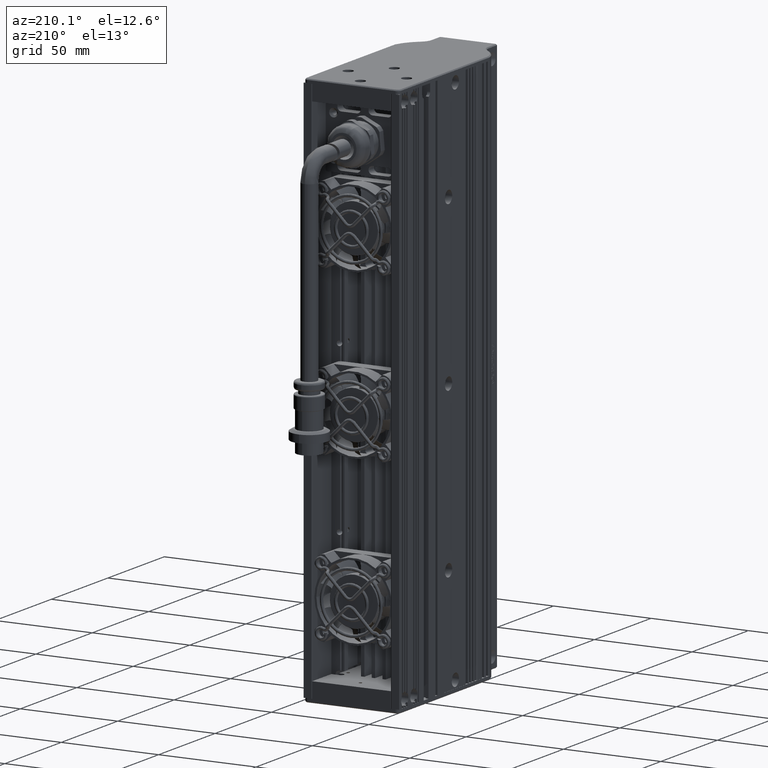
[diagram: clean part render]
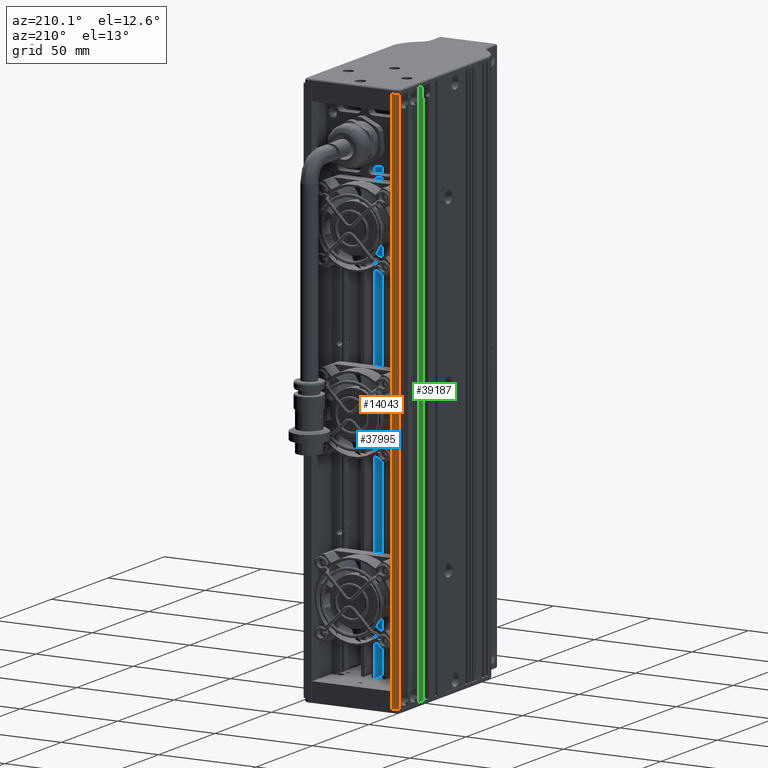
[diagram: same view with three faces highlighted in distinct colors, each labeled with its STEP entity id]
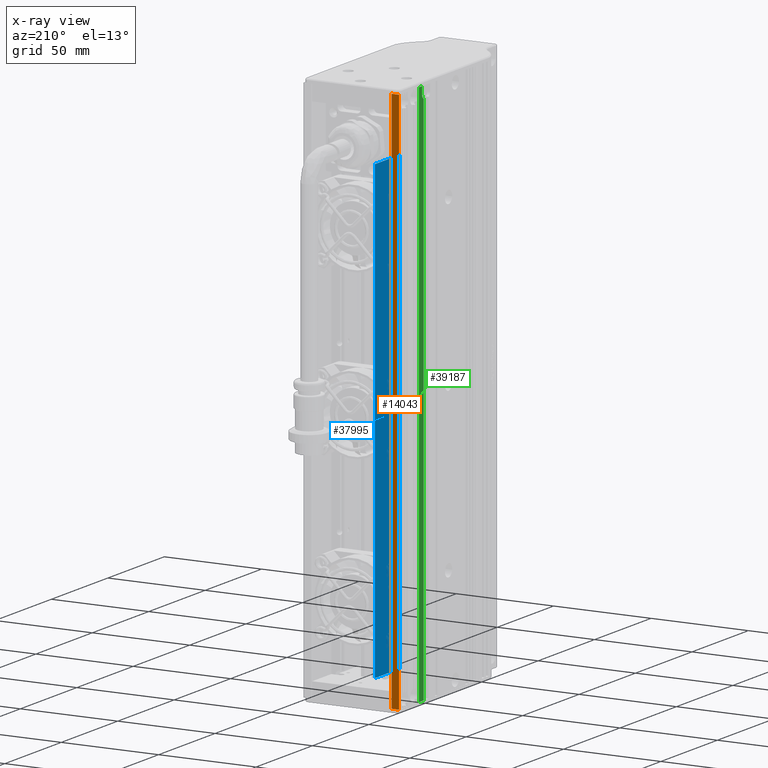
[diagram: x-ray of the same camera — body ghosted, the three highlighted faces saturated]
A machine part, auxiliary view with three faces highlighted in distinct colors.
The next image is the same camera in x-ray (body ghosted, the three faces saturated) — at least one of them is partly hidden behind the body in this view.
Their STEP definitions:

[orange] entity #14043 — the highlighted planar face has unit normal (-0, 1, 0).
#539 = VERTEX_POINT ( 'NONE', #6583 ) ;
#2562 = AXIS2_PLACEMENT_3D ( 'NONE', #118280, #108735, #109996 ) ;
#6583 = CARTESIAN_POINT ( 'NONE',  ( -62.06201180637545200, 44.00452420306967800, 140.0000000000000000 ) ) ;
#7781 = CARTESIAN_POINT ( 'NONE',  ( -58.21201180637543600, 44.00452420306967800, 140.0000000000000000 ) ) ;
#9898 = EDGE_CURVE ( 'NONE', #101570, #119406, #30598, .T. ) ;
#14043 = ADVANCED_FACE ( 'NONE', ( #119908 ), #27633, .T. ) ;
#14738 = LINE ( 'NONE', #119509, #116734 ) ;
#27512 = VECTOR ( 'NONE', #105879, 1000.000000000000000 ) ;
#27633 = PLANE ( 'NONE',  #2562 ) ;
#30598 = LINE ( 'NONE', #53312, #27512 ) ;
#32636 = LINE ( 'NONE', #50768, #116008 ) ;
#38266 = CARTESIAN_POINT ( 'NONE',  ( -62.06201180637545200, 44.00452420306967800, -140.0000000000000000 ) ) ;
#38853 = EDGE_CURVE ( 'NONE', #119406, #539, #32636, .T. ) ;
#42129 = CARTESIAN_POINT ( 'NONE',  ( -58.21201180637543600, 44.00452420306967800, -140.0000000000000000 ) ) ;
#50539 = VECTOR ( 'NONE', #126775, 1000.000000000000000 ) ;
#50768 = CARTESIAN_POINT ( 'NONE',  ( -62.06201180637545200, 44.00452420306967800, 140.0000000000000000 ) ) ;
#52541 = ORIENTED_EDGE ( 'NONE', *, *, #120031, .F. ) ;
#53312 = CARTESIAN_POINT ( 'NONE',  ( -37.56201180637545200, 44.00452420306967800, -140.0000000000000000 ) ) ;
#67338 = ORIENTED_EDGE ( 'NONE', *, *, #38853, .T. ) ;
#67542 = LINE ( 'NONE', #76994, #50539 ) ;
#76994 = CARTESIAN_POINT ( 'NONE',  ( -37.56201180637544500, 44.00452420306967800, 140.0000000000000000 ) ) ;
#85119 = ORIENTED_EDGE ( 'NONE', *, *, #93552, .T. ) ;
#90903 = DIRECTION ( 'NONE',  ( 0.0000000000000000000, 0.0000000000000000000, 1.000000000000000000 ) ) ;
#93552 = EDGE_CURVE ( 'NONE', #127152, #101570, #14738, .T. ) ;
#101570 = VERTEX_POINT ( 'NONE', #42129 ) ;
#102302 = EDGE_LOOP ( 'NONE', ( #111777, #67338, #52541, #85119 ) ) ;
#105879 = DIRECTION ( 'NONE',  ( -1.000000000000000000, -1.416100796715760900E-016, 0.0000000000000000000 ) ) ;
#108735 = DIRECTION ( 'NONE',  ( -1.416100796715760900E-016, 1.000000000000000000, 0.0000000000000000000 ) ) ;
#109996 = DIRECTION ( 'NONE',  ( -1.000000000000000000, -1.416100796715760900E-016, 0.0000000000000000000 ) ) ;
#110367 = DIRECTION ( 'NONE',  ( -0.0000000000000000000, -0.0000000000000000000, -1.000000000000000000 ) ) ;
#111777 = ORIENTED_EDGE ( 'NONE', *, *, #9898, .T. ) ;
#116008 = VECTOR ( 'NONE', #90903, 1000.000000000000000 ) ;
#116734 = VECTOR ( 'NONE', #110367, 1000.000000000000000 ) ;
#118280 = CARTESIAN_POINT ( 'NONE',  ( -37.56201180637545200, 44.00452420306967800, 140.0000000000000000 ) ) ;
#119406 = VERTEX_POINT ( 'NONE', #38266 ) ;
#119509 = CARTESIAN_POINT ( 'NONE',  ( -58.21201180637543600, 44.00452420306967800, 140.0000000000000000 ) ) ;
#119908 = FACE_OUTER_BOUND ( 'NONE', #102302, .T. ) ;
#120031 = EDGE_CURVE ( 'NONE', #127152, #539, #67542, .T. ) ;
#126775 = DIRECTION ( 'NONE',  ( -1.000000000000000000, -0.0000000000000000000, -0.0000000000000000000 ) ) ;
#127152 = VERTEX_POINT ( 'NONE', #7781 ) ;

[blue] entity #37995 — the highlighted planar face has unit normal (-1, -0, 0).
#4773 = EDGE_CURVE ( 'NONE', #7613, #78952, #33612, .T. ) ;
#5895 = LINE ( 'NONE', #11901, #97168 ) ;
#7613 = VERTEX_POINT ( 'NONE', #67261 ) ;
#8763 = EDGE_LOOP ( 'NONE', ( #28291, #89151, #40625, #76533 ) ) ;
#11236 = CARTESIAN_POINT ( 'NONE',  ( -38.41201180637544600, 24.50452420306966800, 140.0000000000000000 ) ) ;
#11901 = CARTESIAN_POINT ( 'NONE',  ( -38.41201180637543200, 3.004524203069662400, 140.0000000000000000 ) ) ;
#12976 = DIRECTION ( 'NONE',  ( -0.0000000000000000000, -0.0000000000000000000, -1.000000000000000000 ) ) ;
#13602 = CARTESIAN_POINT ( 'NONE',  ( -38.41201180637544600, 44.00452420306967800, 102.0000000000000100 ) ) ;
#18219 = PLANE ( 'NONE',  #64566 ) ;
#20350 = LINE ( 'NONE', #11236, #122351 ) ;
#28291 = ORIENTED_EDGE ( 'NONE', *, *, #94642, .T. ) ;
#33612 = LINE ( 'NONE', #13602, #35086 ) ;
#35086 = VECTOR ( 'NONE', #112470, 1000.000000000000000 ) ;
#37995 = ADVANCED_FACE ( 'NONE', ( #96289 ), #18219, .T. ) ;
#40351 = VECTOR ( 'NONE', #123188, 1000.000000000000000 ) ;
#40625 = ORIENTED_EDGE ( 'NONE', *, *, #68039, .T. ) ;
#41520 = VERTEX_POINT ( 'NONE', #94871 ) ;
#51956 = VERTEX_POINT ( 'NONE', #64971 ) ;
#54095 = CARTESIAN_POINT ( 'NONE',  ( -38.41201180637543200, 70.92087611041402800, -132.0000000000000000 ) ) ;
#55825 = CARTESIAN_POINT ( 'NONE',  ( -38.41201180637543200, 2.004524203069661900, 140.0000000000000000 ) ) ;
#64566 = AXIS2_PLACEMENT_3D ( 'NONE', #55825, #107131, #87319 ) ;
#64971 = CARTESIAN_POINT ( 'NONE',  ( -38.41201180637543900, 24.50452420306966800, -132.0000000000000000 ) ) ;
#67261 = CARTESIAN_POINT ( 'NONE',  ( -38.41201180637544600, 24.50452420306966800, 102.0000000000000100 ) ) ;
#68039 = EDGE_CURVE ( 'NONE', #41520, #78952, #5895, .T. ) ;
#75898 = LINE ( 'NONE', #54095, #40351 ) ;
#76533 = ORIENTED_EDGE ( 'NONE', *, *, #4773, .F. ) ;
#78952 = VERTEX_POINT ( 'NONE', #85336 ) ;
#85336 = CARTESIAN_POINT ( 'NONE',  ( -38.41201180637543900, 3.004524203069662400, 102.0000000000000100 ) ) ;
#87319 = DIRECTION ( 'NONE',  ( 5.541477770481466300E-016, -1.000000000000000000, 0.0000000000000000000 ) ) ;
#89151 = ORIENTED_EDGE ( 'NONE', *, *, #114904, .F. ) ;
#94642 = EDGE_CURVE ( 'NONE', #7613, #51956, #20350, .T. ) ;
#94871 = CARTESIAN_POINT ( 'NONE',  ( -38.41201180637543200, 3.004524203069662400, -132.0000000000000000 ) ) ;
#96289 = FACE_OUTER_BOUND ( 'NONE', #8763, .T. ) ;
#97168 = VECTOR ( 'NONE', #119909, 1000.000000000000000 ) ;
#107131 = DIRECTION ( 'NONE',  ( -1.000000000000000000, -5.541477770481466300E-016, 0.0000000000000000000 ) ) ;
#112470 = DIRECTION ( 'NONE',  ( -0.0000000000000000000, -1.000000000000000000, 0.0000000000000000000 ) ) ;
#114904 = EDGE_CURVE ( 'NONE', #41520, #51956, #75898, .T. ) ;
#119909 = DIRECTION ( 'NONE',  ( 0.0000000000000000000, 0.0000000000000000000, 1.000000000000000000 ) ) ;
#122351 = VECTOR ( 'NONE', #12976, 1000.000000000000000 ) ;
#123188 = DIRECTION ( 'NONE',  ( 0.0000000000000000000, 1.000000000000000000, 0.0000000000000000000 ) ) ;

[green] entity #39187 — the highlighted planar face has unit normal (1, 0, -0).
#184 = DIRECTION ( 'NONE',  ( 0.0000000000000000000, 0.0000000000000000000, 1.000000000000000000 ) ) ;
#4505 = EDGE_LOOP ( 'NONE', ( #54485, #20383, #7331, #36061, #92510, #9053 ) ) ;
#5263 = LINE ( 'NONE', #63276, #73202 ) ;
#6718 = AXIS2_PLACEMENT_3D ( 'NONE', #123924, #15060, #7642 ) ;
#7331 = ORIENTED_EDGE ( 'NONE', *, *, #58662, .T. ) ;
#7424 = CARTESIAN_POINT ( 'NONE',  ( -62.06201180637544500, 2.004524203069658400, 140.0000000000000000 ) ) ;
#7642 = DIRECTION ( 'NONE',  ( 0.0000000000000000000, 1.040834085586083300E-014, -1.000000000000000000 ) ) ;
#8286 = PLANE ( 'NONE',  #46523 ) ;
#8492 = VECTOR ( 'NONE', #108619, 1000.000000000000000 ) ;
#9053 = ORIENTED_EDGE ( 'NONE', *, *, #26377, .T. ) ;
#15060 = DIRECTION ( 'NONE',  ( -1.000000000000000000, -0.0000000000000000000, -0.0000000000000000000 ) ) ;
#19135 = VERTEX_POINT ( 'NONE', #120961 ) ;
#19151 = VERTEX_POINT ( 'NONE', #61000 ) ;
#20383 = ORIENTED_EDGE ( 'NONE', *, *, #87733, .F. ) ;
#23533 = CARTESIAN_POINT ( 'NONE',  ( -62.06201180637545200, 22.10452420306966600, 134.0771115476970900 ) ) ;
#26377 = EDGE_CURVE ( 'NONE', #108840, #67227, #61643, .T. ) ;
#31456 = VECTOR ( 'NONE', #184, 1000.000000000000000 ) ;
#34545 = EDGE_CURVE ( 'NONE', #108840, #90258, #115164, .T. ) ;
#36061 = ORIENTED_EDGE ( 'NONE', *, *, #88602, .F. ) ;
#39187 = ADVANCED_FACE ( 'NONE', ( #88197 ), #8286, .F. ) ;
#46523 = AXIS2_PLACEMENT_3D ( 'NONE', #7424, #48064, #87362 ) ;
#48064 = DIRECTION ( 'NONE',  ( 1.000000000000000000, 1.584222352490234300E-016, -0.0000000000000000000 ) ) ;
#49013 = CARTESIAN_POINT ( 'NONE',  ( -62.06201180637545200, 26.50452420306967100, 140.0000000000000000 ) ) ;
#54485 = ORIENTED_EDGE ( 'NONE', *, *, #102961, .F. ) ;
#58662 = EDGE_CURVE ( 'NONE', #19135, #94479, #5263, .T. ) ;
#59308 = CARTESIAN_POINT ( 'NONE',  ( -62.06201180637545200, 22.10452420306966600, -140.0000000000000000 ) ) ;
#61000 = CARTESIAN_POINT ( 'NONE',  ( -62.06201180637545200, 26.50452420306967100, 140.0000000000000000 ) ) ;
#61643 = LINE ( 'NONE', #71976, #106425 ) ;
#63276 = CARTESIAN_POINT ( 'NONE',  ( -62.06201180637544500, 2.004524203069658400, -140.0000000000000000 ) ) ;
#63937 = VECTOR ( 'NONE', #77987, 1000.000000000000000 ) ;
#67227 = VERTEX_POINT ( 'NONE', #110450 ) ;
#71976 = CARTESIAN_POINT ( 'NONE',  ( -62.06201180637545200, 23.55452420306966500, 140.0000000000000000 ) ) ;
#73202 = VECTOR ( 'NONE', #113715, 1000.000000000000000 ) ;
#77987 = DIRECTION ( 'NONE',  ( -0.0000000000000000000, -0.0000000000000000000, -1.000000000000000000 ) ) ;
#84022 = LINE ( 'NONE', #49013, #31456 ) ;
#87362 = DIRECTION ( 'NONE',  ( -1.584222352490234300E-016, 1.000000000000000000, 0.0000000000000000000 ) ) ;
#87733 = EDGE_CURVE ( 'NONE', #19135, #19151, #84022, .T. ) ;
#88197 = FACE_OUTER_BOUND ( 'NONE', #4505, .T. ) ;
#88384 = CARTESIAN_POINT ( 'NONE',  ( -62.06201180637545200, 2.004524203069662400, 140.0000000000000000 ) ) ;
#88602 = EDGE_CURVE ( 'NONE', #90258, #94479, #90146, .T. ) ;
#90146 = LINE ( 'NONE', #116874, #63937 ) ;
#90258 = VERTEX_POINT ( 'NONE', #23533 ) ;
#92510 = ORIENTED_EDGE ( 'NONE', *, *, #34545, .F. ) ;
#94479 = VERTEX_POINT ( 'NONE', #59308 ) ;
#102961 = EDGE_CURVE ( 'NONE', #19151, #67227, #110458, .T. ) ;
#106425 = VECTOR ( 'NONE', #121685, 1000.000000000000000 ) ;
#108619 = DIRECTION ( 'NONE',  ( -0.0000000000000000000, -1.000000000000000000, 0.0000000000000000000 ) ) ;
#108840 = VERTEX_POINT ( 'NONE', #118099 ) ;
#110450 = CARTESIAN_POINT ( 'NONE',  ( -62.06201180637545200, 23.55452420306966500, 140.0000000000000000 ) ) ;
#110458 = LINE ( 'NONE', #88384, #8492 ) ;
#113715 = DIRECTION ( 'NONE',  ( 1.584222352490234300E-016, -1.000000000000000000, -0.0000000000000000000 ) ) ;
#115164 = CIRCLE ( 'NONE', #6718, 2.000000000000001800 ) ;
#116874 = CARTESIAN_POINT ( 'NONE',  ( -62.06201180637545200, 22.10452420306966600, 140.0000000000000000 ) ) ;
#118099 = CARTESIAN_POINT ( 'NONE',  ( -62.06201180637545200, 23.55452420306966800, 136.0000000000000000 ) ) ;
#120961 = CARTESIAN_POINT ( 'NONE',  ( -62.06201180637545200, 26.50452420306967100, -140.0000000000000000 ) ) ;
#121685 = DIRECTION ( 'NONE',  ( 0.0000000000000000000, -0.0000000000000000000, 1.000000000000000000 ) ) ;
#123924 = CARTESIAN_POINT ( 'NONE',  ( -62.06201180637545200, 21.55452420306966800, 136.0000000000000000 ) ) ;